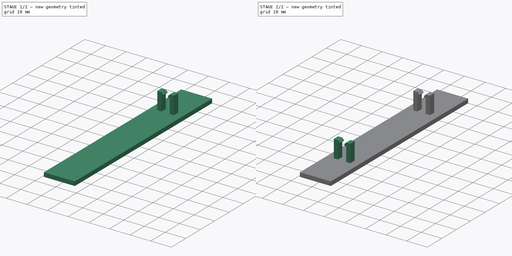
[diagram: build sequence overview — one tinted view per stage of 2, left to right]
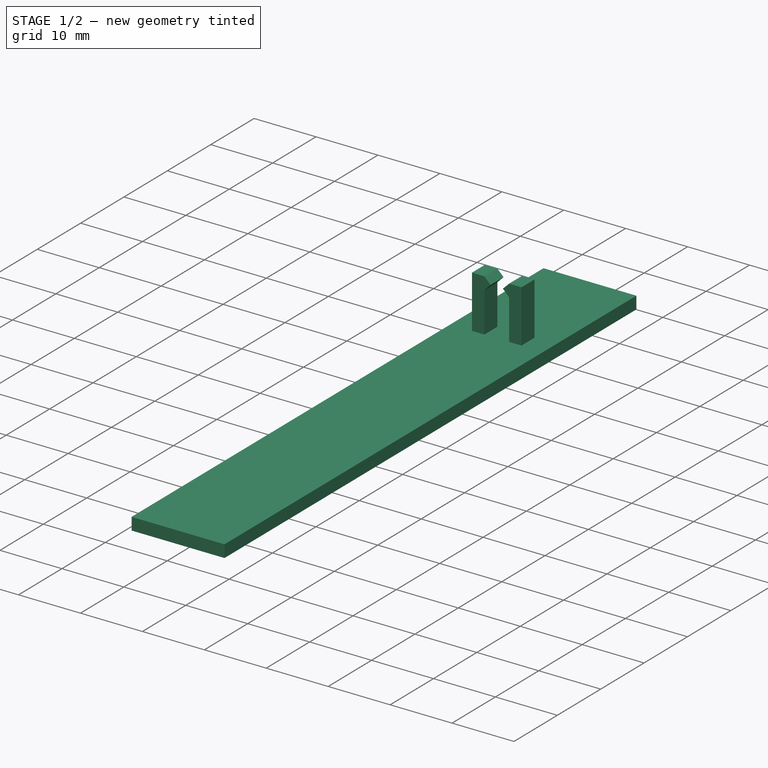
[diagram: stage 1 of 2 — iso view after this stage's code; geometry added in this stage tinted green]
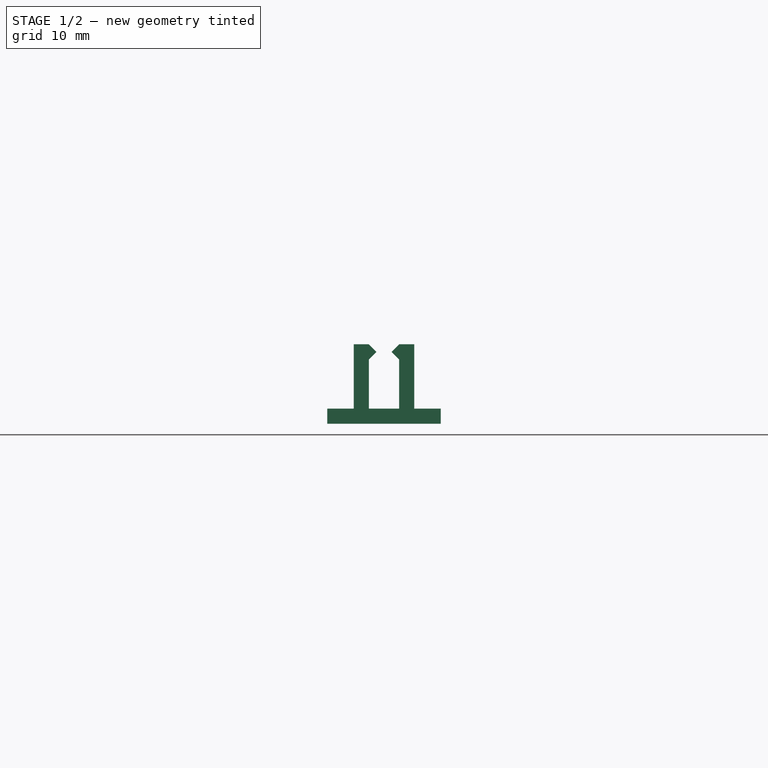
[diagram: stage 1 of 2 — front view after this stage's code; geometry added in this stage tinted green]
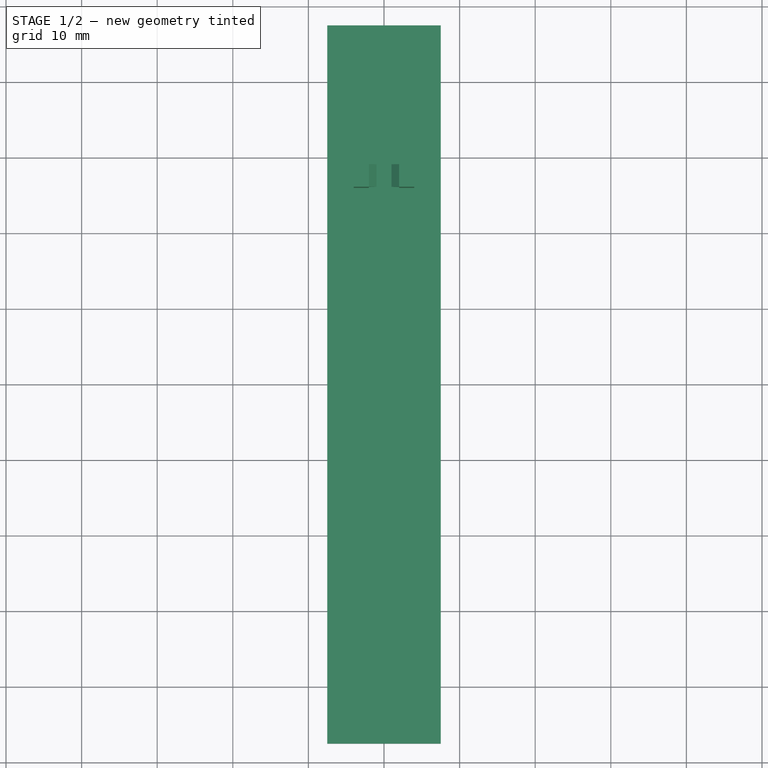
[diagram: stage 1 of 2 — top view after this stage's code; geometry added in this stage tinted green]
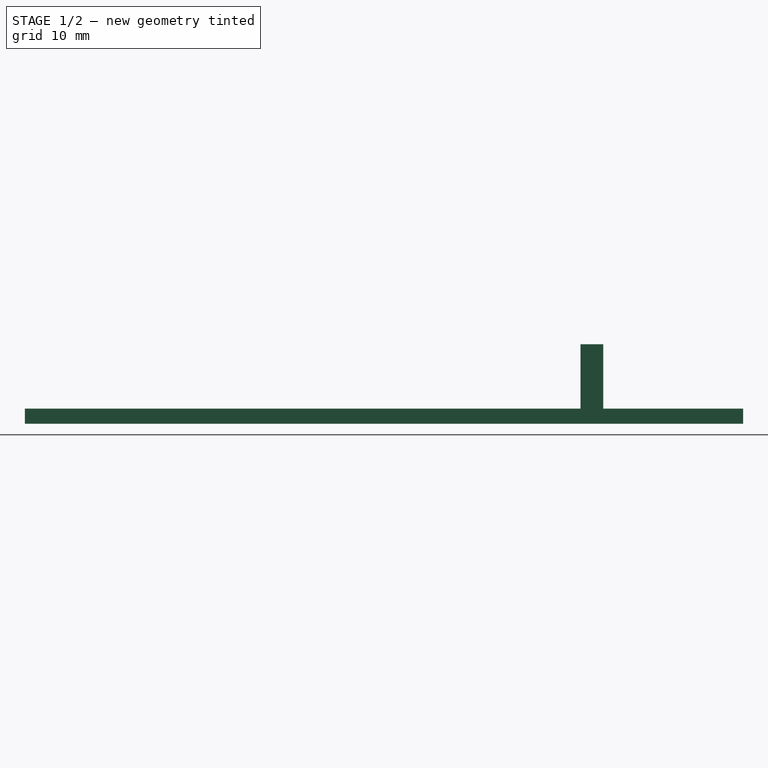
[diagram: stage 1 of 2 — right view after this stage's code; geometry added in this stage tinted green]
FCSTD DOCUMENT  (FreeCAD 0.19R22756 (Git))
Label: small-wrench-holder
License: All rights reserved
LicenseURL: http://en.wikipedia.org/wiki/All_rights_reserved
objects: Sketcher::SketchObject×2, PartDesign::Pad×2, PartDesign::Plane×1, PartDesign::Mirrored×1, PartDesign::Body×1
note: 9 computed .brp shape members not serialized (recipe doc carries the construction recipe); baked Part::Feature solids carry a one-line shape summary decoded from their .brp

FEATURE [Sketcher::SketchObject] Sketch
  MapMode = 5
  Support = -> [XY_Plane]
  expr: Constraints[9] = Constraints[8] / 2
  expr: Constraints[11] = -Constraints[10] / 2
  sketch-geometry (4):
    g0: LineSegment StartX=-7.5 StartY=-47.5 StartZ=0 EndX=7.5 EndY=-47.5 EndZ=0
    g1: LineSegment StartX=7.5 StartY=-47.5 StartZ=0 EndX=7.5 EndY=47.5 EndZ=0
    g2: LineSegment StartX=7.5 StartY=47.5 StartZ=0 EndX=-7.5 EndY=47.5 EndZ=0
    g3: LineSegment StartX=-7.5 StartY=47.5 StartZ=0 EndX=-7.5 EndY=-47.5 EndZ=0
  constraints (12):
    c: Coincident(g0,g1)
    c: Coincident(g1,g2)
    c: Coincident(g2,g3)
    c: Coincident(g3,g0)
    c: Horizontal(g0)
    c: Horizontal(g2)
    c: Vertical(g1)
    c: Vertical(g3)
    c: Distance(g1) = 95
    c: DistanceY(g-1,g1) = 47.5
    c: Distance(g2) = 15
    c: DistanceX(g-2,g2) = -7.5
FEATURE [PartDesign::Pad] Pad
  Direction = (1,1,1)
  Length = 2
  Length2 = 100
  Profile = -> Sketch
  Type = 0
FEATURE [PartDesign::Plane] DatumPlane
  AttachmentOffset = pos=(0,0,-20) rot=(0,0,1;0rad)
  Length = 60
  MapMode = 5
  Placement = pos=(0,27.5,4.4e-15) rot=(0,0.707107,0.707107;3.14159rad)
  ResizeMode = 0
  Support = -> [Pad]
  Width = 60
FEATURE [Sketcher::SketchObject] Sketch001
  ExternalGeometry = -> [Pad]
  MapMode = 5
  Placement = pos=(0,27.5,4.4e-15) rot=(0,0.707107,0.707107;3.14159rad)
  Support = -> [DatumPlane]
  expr: Constraints[28] = Constraints[25]
  expr: Constraints[26] = Constraints[25] / 2
  expr: Constraints[29] = Constraints[24]
  expr: Constraints[32] = Constraints[26]
  expr: Constraints[33] = Constraints[27]
  expr: Constraints[34] = Constraints[19]
  sketch-geometry (12):
    g0: LineSegment StartX=-4 StartY=2 StartZ=0 EndX=-4 EndY=10.5 EndZ=0
    g1: LineSegment StartX=-4 StartY=10.5 StartZ=0 EndX=-2 EndY=10.5 EndZ=0
    g2: LineSegment StartX=-2 StartY=10.5 StartZ=0 EndX=-1 EndY=9.5 EndZ=0
    g3: LineSegment StartX=-1 StartY=9.5 StartZ=0 EndX=-2 EndY=8.5 EndZ=0
    g4: LineSegment StartX=-2 StartY=8.5 StartZ=0 EndX=-2 EndY=2 EndZ=0
    g5: LineSegment StartX=-2 StartY=2 StartZ=0 EndX=-4 EndY=2 EndZ=0
    g6: LineSegment StartX=4 StartY=2 StartZ=0 EndX=4 EndY=10.5 EndZ=0
    g7: LineSegment StartX=4 StartY=10.5 StartZ=0 EndX=2 EndY=10.5 EndZ=0
    g8: LineSegment StartX=2 StartY=10.5 StartZ=0 EndX=1 EndY=9.5 EndZ=0
    g9: LineSegment StartX=1 StartY=9.5 StartZ=0 EndX=2 EndY=8.5 EndZ=0
    g10: LineSegment StartX=2 StartY=8.5 StartZ=0 EndX=2 EndY=2 EndZ=0
    g11: LineSegment StartX=2 StartY=2 StartZ=0 EndX=4 EndY=2 EndZ=0
  constraints (36):
    c: PointOnObject(g0,g-3)
    c: Vertical(g0)
    c: Coincident(g1,g0)
    c: Horizontal(g1)
    c: PointOnObject(g4,g-3)
    c: Vertical(g4)
    c: Coincident(g5,g0)
    c: Coincident(g4,g3)
    c: PointOnObject(g6,g-3)
    c: Vertical(g6)
    c: Coincident(g7,g6)
    c: Horizontal(g7)
    c: Coincident(g8,g7)
    c: Coincident(g9,g8)
    c: Coincident(g10,g9)
    c: PointOnObject(g10,g-3)
    c: Vertical(g10)
    c: Coincident(g11,g10)
    c: Coincident(g11,g6)
    c: Distance(g4,g0) = 2
    c: Equal(g3,g2)
    c: Vertical(g3,g1)
    c: Coincident(g2,g1)
    c: Coincident(g2,g3)
    c: Distance(g4) = 6.5
    c: Distance(g-1,g4) = 2
    c: Distance(g2,g4) = 1
    c: Distance(g3,g1) = 2
    c: Distance(g-1,g10) = 2
    c: Distance(g10) = 6.5
    c: Equal(g8,g9)
    c: Vertical(g7,g9)
    c: Distance(g8,g10) = 1
    c: Distance(g7,g9) = 2
    c: Distance(g6,g10) = 2
    c: Coincident(g4,g5)
FEATURE [PartDesign::Pad] Pad001
  BaseFeature = -> Pad
  Direction = (1,1,1)
  Length = 3
  Length2 = 100
  Midplane = true
  Profile = -> Sketch001
  Type = 0
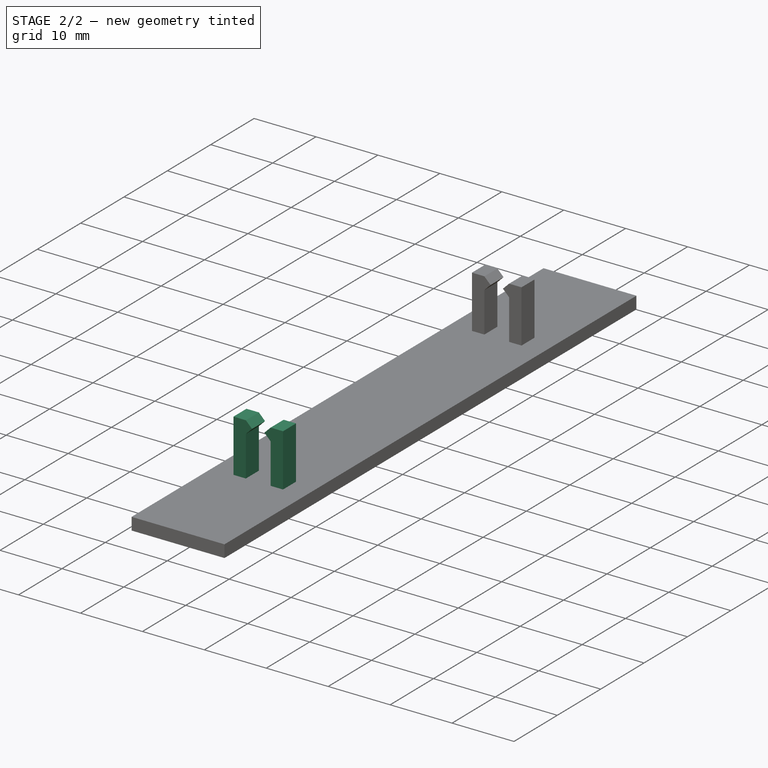
[diagram: stage 2 of 2 — iso view after this stage's code; geometry added in this stage tinted green]
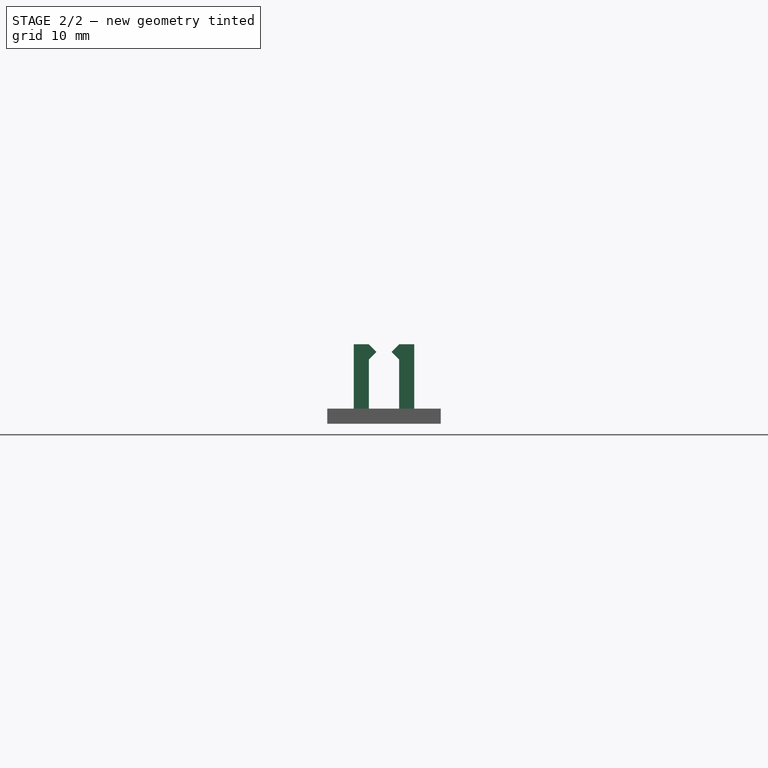
[diagram: stage 2 of 2 — front view after this stage's code; geometry added in this stage tinted green]
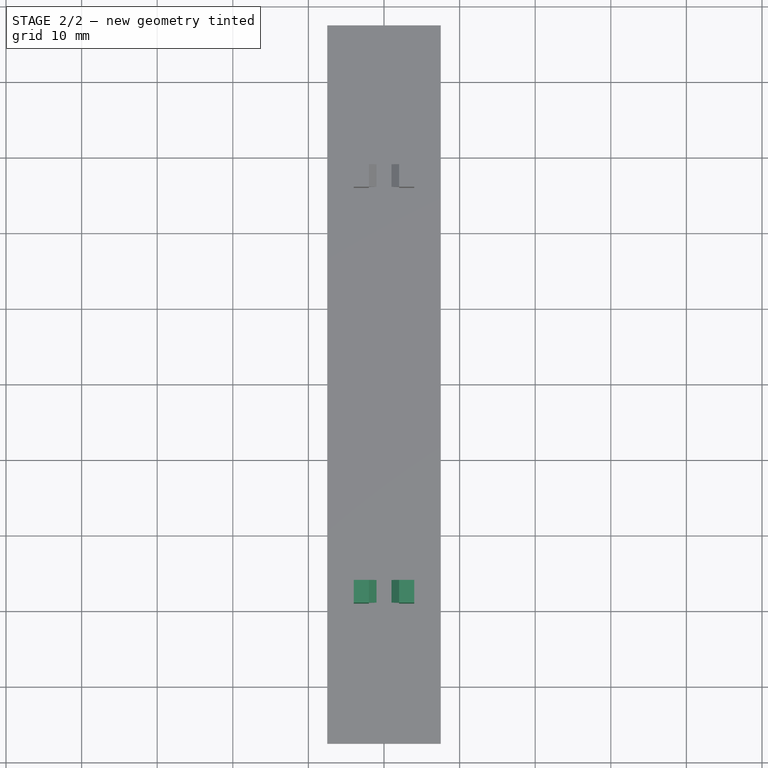
[diagram: stage 2 of 2 — top view after this stage's code; geometry added in this stage tinted green]
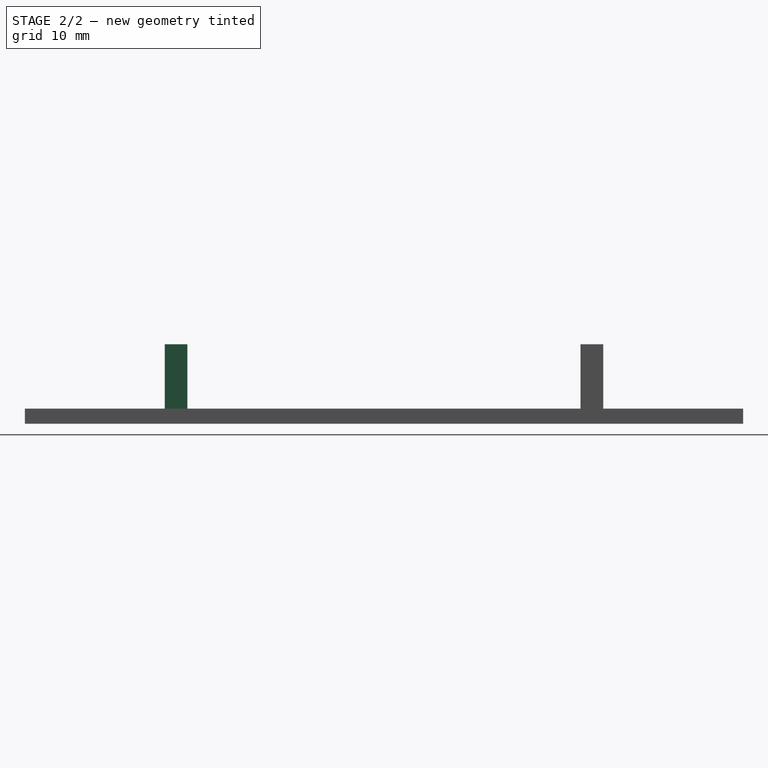
[diagram: stage 2 of 2 — right view after this stage's code; geometry added in this stage tinted green]
FEATURE [PartDesign::Mirrored] Mirrored
  BaseFeature = -> Pad001
  MirrorPlane = -> XZ_Plane
  Originals = -> [Pad001]
FEATURE [PartDesign::Body] Body
  Group = -> [Sketch,Pad,DatumPlane,Sketch001,Pad001,Mirrored]
  Origin = -> Origin
  Tip = -> Mirrored
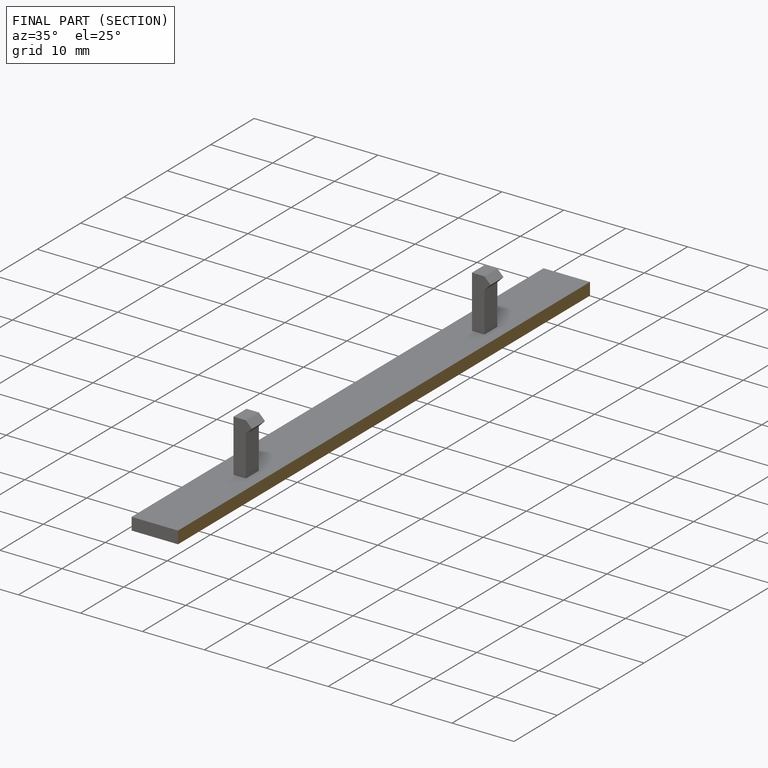
[diagram: finished part — half-section view (interior)]
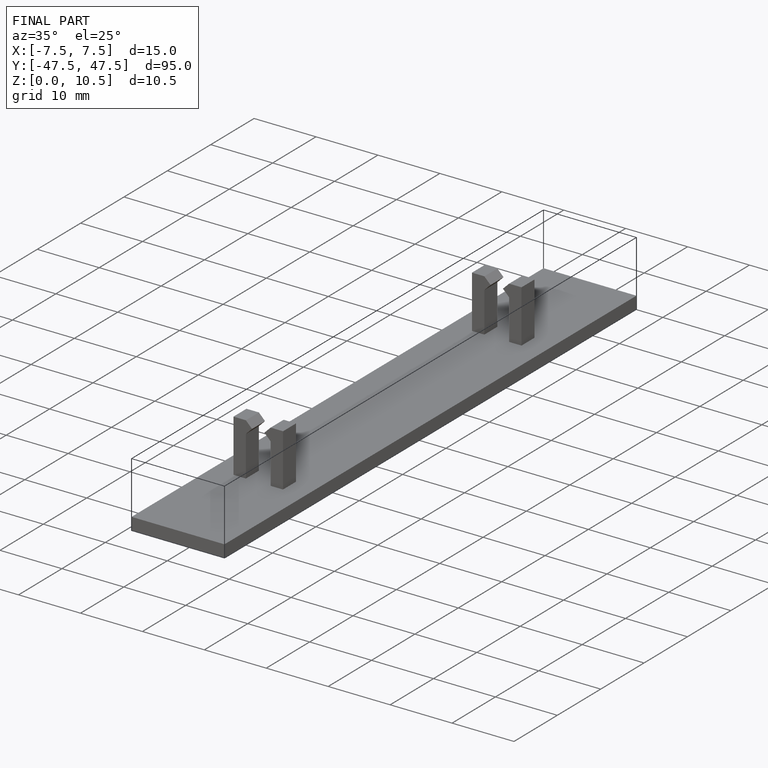
[diagram: finished part — iso view with bounding-box wireframe]
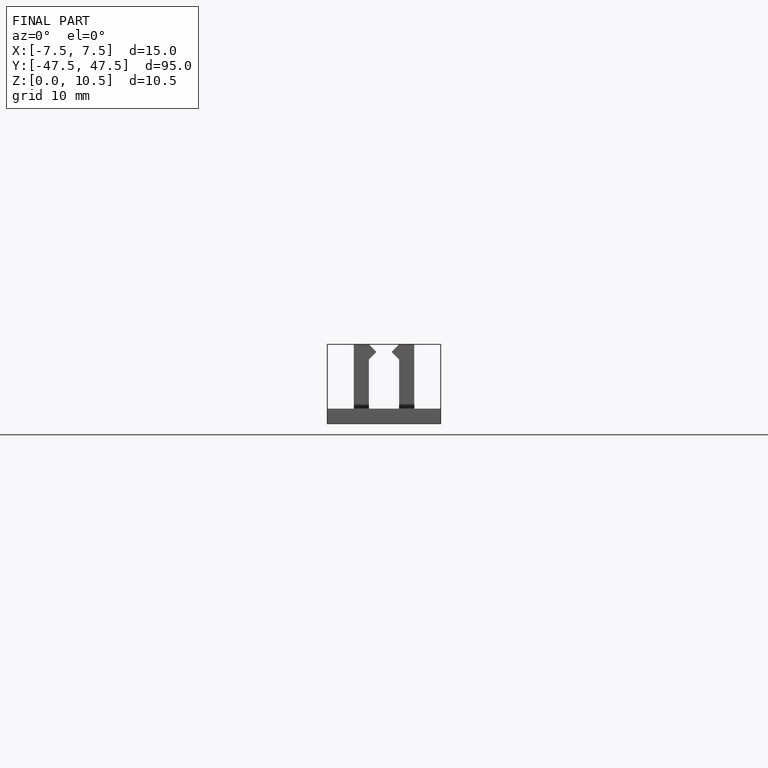
[diagram: finished part — front view with bounding-box wireframe]
